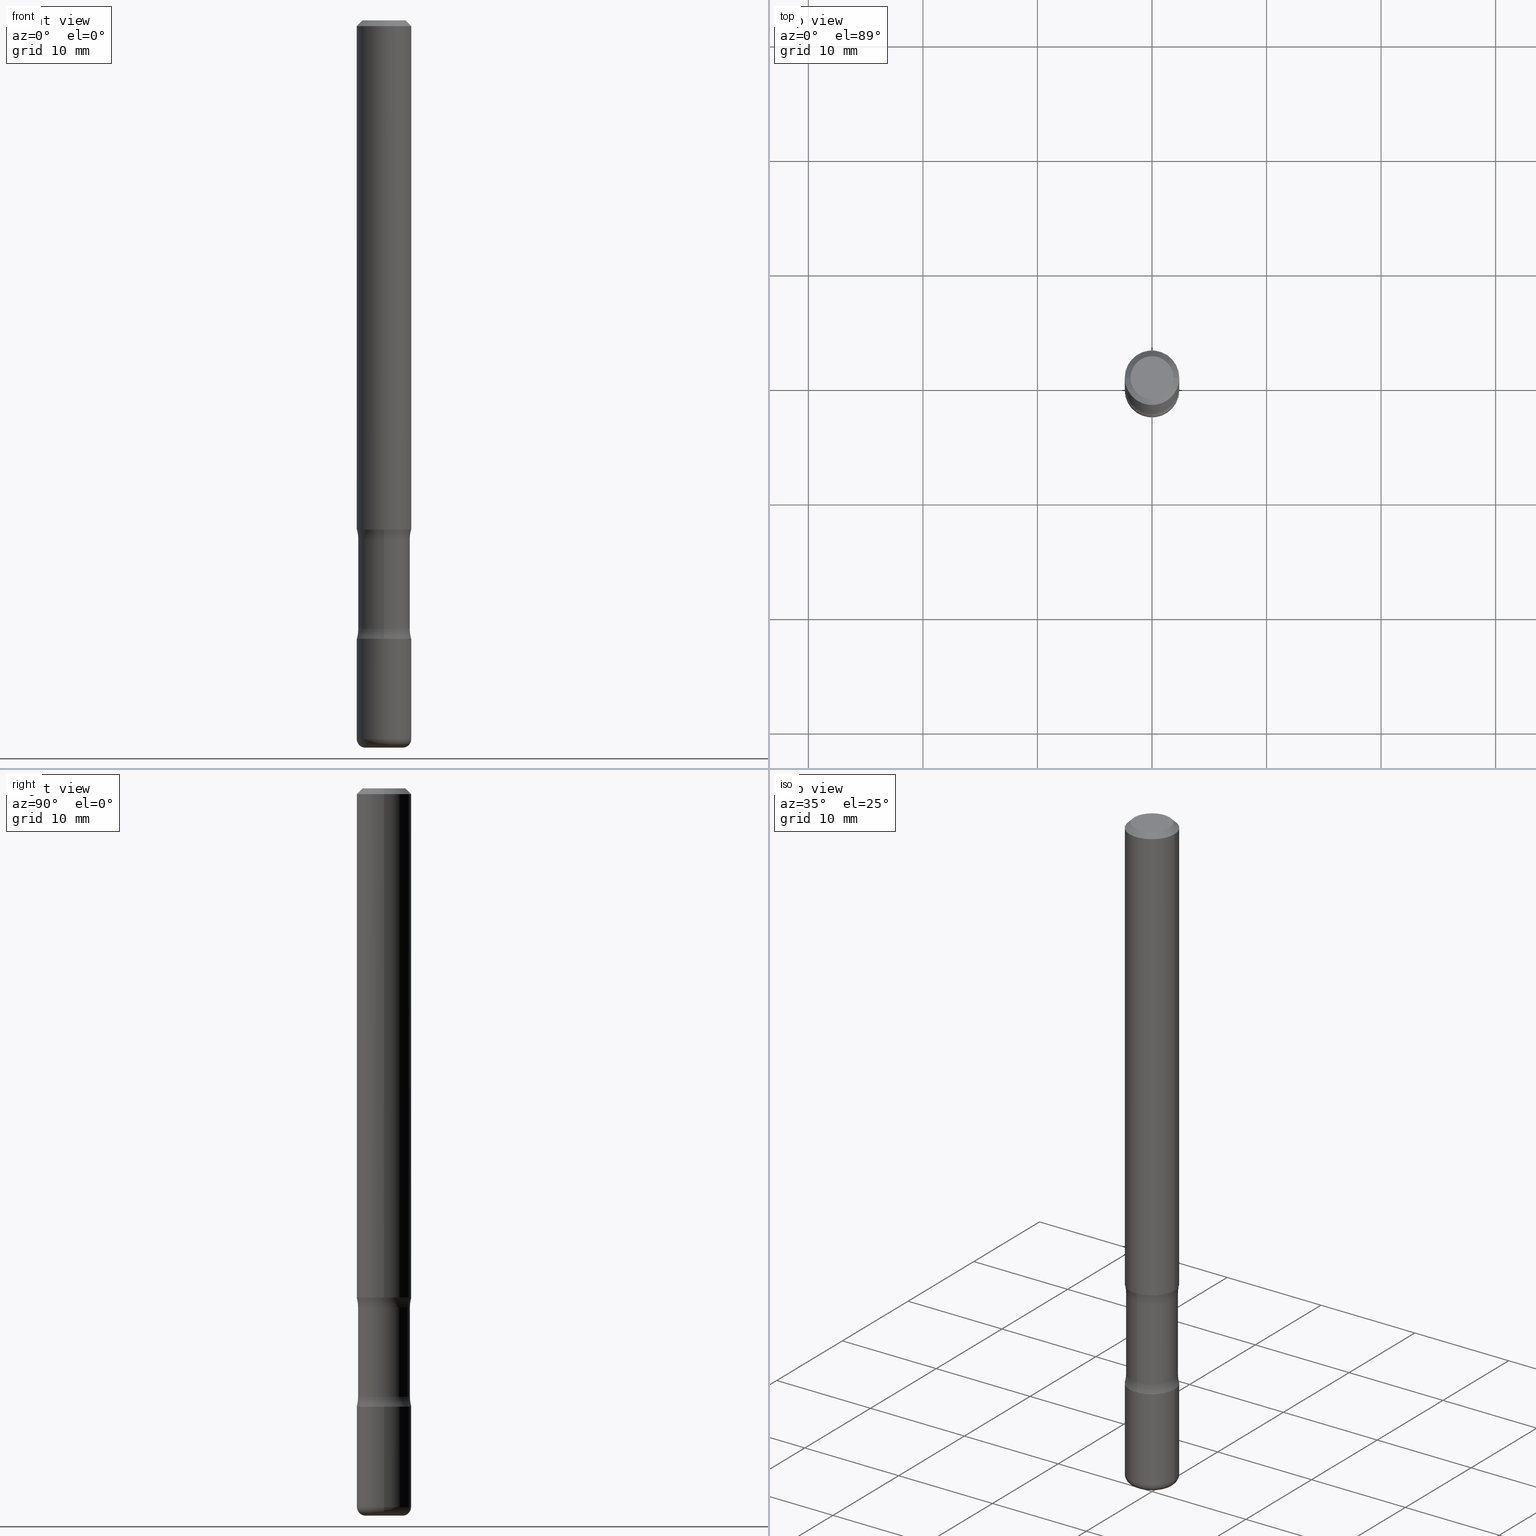
[diagram: canonical four-view strip — front | top / right | iso, engineering-drawing reading convention]
A machine part, canonical four-view strip (front | top / right | iso — engineering-drawing reading convention). The complete STEP part file that produces these views, byte-faithful:
ISO-10303-21;
HEADER;
FILE_DESCRIPTION (( 'STEP AP203' ),
    '1' );
FILE_NAME ('37779.STEP',
    '2024-03-02T00:15:08',
    ( '' ),
    ( '' ),
    'SwSTEP 2.0',
    'SolidWorks 2023',
    '' );
FILE_SCHEMA (( 'CONFIG_CONTROL_DESIGN' ));
ENDSEC;

DATA;
#1 = ORIENTED_EDGE ( 'NONE', *, *, #467, .F. ) ;
#2 = ORIENTED_EDGE ( 'NONE', *, *, #232, .F. ) ;
#3 = CIRCLE ( 'NONE', #419, 0.09375000000000009714 ) ;
#4 = AXIS2_PLACEMENT_3D ( 'NONE', #150, #148, #233 ) ;
#5 = ORIENTED_EDGE ( 'NONE', *, *, #477, .T. ) ;
#6 = ORIENTED_EDGE ( 'NONE', *, *, #92, .F. ) ;
#7 = LINE ( 'NONE', #183, #430 ) ;
#8 = EDGE_LOOP ( 'NONE', ( #1, #98 ) ) ;
#9 = ORIENTED_EDGE ( 'NONE', *, *, #557, .T. ) ;
#10 = DIRECTION ( 'NONE',  ( 2.438088387897960049E-29, -3.491481338843145188E-15, -1.000000000000000000 ) ) ;
#11 = PLANE ( 'NONE',  #129 ) ;
#12 = PERSON_AND_ORGANIZATION ( #230, #309 ) ;
#13 = PLANE ( 'NONE',  #462 ) ;
#14 = DIRECTION ( 'NONE',  ( 2.553476385947133355E-29, -3.336808337214295667E-15, -1.000000000000000000 ) ) ;
#15 = CIRCLE ( 'NONE', #86, 0.09374999999999981959 ) ;
#16 = CIRCLE ( 'NONE', #346, 0.1250000000000000278 ) ;
#17 = DIRECTION ( 'NONE',  ( 2.553476385947133355E-29, -3.336808337214295667E-15, -1.000000000000000000 ) ) ;
#18 = ORIENTED_EDGE ( 'NONE', *, *, #499, .T. ) ;
#19 = CALENDAR_DATE ( 2024, 1, 3 ) ;
#20 = DIRECTION ( 'NONE',  ( 1.000000000000000000, -6.982962677686266711E-15, 4.876176775795935793E-29 ) ) ;
#21 = DIRECTION ( 'NONE',  ( 6.982962677686265133E-15, 1.000000000000000000, -3.067338098149349877E-15 ) ) ;
#22 = ORIENTED_EDGE ( 'NONE', *, *, #269, .T. ) ;
#23 = ADVANCED_FACE ( 'NONE', ( #300 ), #13, .F. ) ;
#24 = APPROVAL_DATE_TIME ( #263, #276 ) ;
#25 = ADVANCED_FACE ( 'NONE', ( #347 ), #389, .T. ) ;
#26 = APPROVAL_STATUS ( 'not_yet_approved' ) ;
#27 = DIRECTION ( 'NONE',  ( 2.438088387897960049E-29, -3.491481338843145188E-15, -1.000000000000000000 ) ) ;
#28 = DIRECTION ( 'NONE',  ( -2.445468806185136877E-29, 3.491481338843145188E-15, 1.000000000000000000 ) ) ;
#29 = FACE_OUTER_BOUND ( 'NONE', #438, .T. ) ;
#30 = DIRECTION ( 'NONE',  ( 1.000000000000000000, -6.982962677686270655E-15, 0.000000000000000000 ) ) ;
#31 = FACE_OUTER_BOUND ( 'NONE', #101, .T. ) ;
#32 = DIRECTION ( 'NONE',  ( 6.982962677686265922E-15, 1.000000000000000000, -2.913971193241877611E-15 ) ) ;
#33 = DIRECTION ( 'NONE',  ( 2.553476385947133355E-29, -3.336808337214295667E-15, -1.000000000000000000 ) ) ;
#34 = CARTESIAN_POINT ( 'NONE',  ( 1.494790448192259658E-15, 0.2140624999999937161, -1.783910210022205289 ) ) ;
#35 = AXIS2_PLACEMENT_3D ( 'NONE', #134, #531, #336 ) ;
#36 = AXIS2_PLACEMENT_3D ( 'NONE', #315, #17, #125 ) ;
#37 = CC_DESIGN_APPROVAL ( #286, ( #62 ) ) ;
#38 = DIRECTION ( 'NONE',  ( 1.000000000000000000, -6.982962677686268288E-15, 0.000000000000000000 ) ) ;
#39 = CARTESIAN_POINT ( 'NONE',  ( 4.890937612370276662E-31, -6.982962677686296539E-17, -0.02000000000000001776 ) ) ;
#40 = DIRECTION ( 'NONE',  ( -2.445468806185136597E-29, 3.491481338843145583E-15, 1.000000000000000000 ) ) ;
#41 = DIRECTION ( 'NONE',  ( 1.000000000000000000, -6.982962677686268288E-15, 4.883557194083112901E-29 ) ) ;
#42 = CARTESIAN_POINT ( 'NONE',  ( -0.09374999999999981959, 5.848231242562233185E-16, -0.02000000000000001776 ) ) ;
#43 = APPROVAL_DATE_TIME ( #375, #286 ) ;
#44 = AXIS2_PLACEMENT_3D ( 'NONE', #393, #344, #498 ) ;
#45 = CIRCLE ( 'NONE', #109, 0.09375000000000002776 ) ;
#46 = EDGE_CURVE ( 'NONE', #259, #460, #159, .T. ) ;
#47 = DIRECTION ( 'NONE',  ( 6.982962677686265922E-15, 1.000000000000000000, -3.336808337214296061E-15 ) ) ;
#48 = FACE_OUTER_BOUND ( 'NONE', #8, .T. ) ;
#49 = DIRECTION ( 'NONE',  ( -2.445468806185136597E-29, 3.491481338843145583E-15, 1.000000000000000000 ) ) ;
#50 = AXIS2_PLACEMENT_3D ( 'NONE', #367, #554, #158 ) ;
#51 = EDGE_CURVE ( 'NONE', #481, #180, #235, .T. ) ;
#52 = APPROVAL_PERSON_ORGANIZATION ( #385, #286, #83 ) ;
#53 = DIRECTION ( 'NONE',  ( 1.000000000000000000, -6.982962677686268288E-15, 4.883557194083112901E-29 ) ) ;
#54 = ORIENTED_EDGE ( 'NONE', *, *, #222, .F. ) ;
#55 = EDGE_LOOP ( 'NONE', ( #485, #60, #9, #226 ) ) ;
#56 = ORIENTED_EDGE ( 'NONE', *, *, #405, .T. ) ;
#57 = DIRECTION ( 'NONE',  ( 6.982962677686265922E-15, 1.000000000000000000, -3.336808337214296061E-15 ) ) ;
#58 = VERTEX_POINT ( 'NONE', #341 ) ;
#59 = CALENDAR_DATE ( 2024, 1, 3 ) ;
#60 = ORIENTED_EDGE ( 'NONE', *, *, #119, .T. ) ;
#61 = CIRCLE ( 'NONE', #146, 0.07374999999999984346 ) ;
#62 = SECURITY_CLASSIFICATION ( '', '', #345 ) ;
#63 = ORIENTED_EDGE ( 'NONE', *, *, #248, .T. ) ;
#64 = CARTESIAN_POINT ( 'NONE',  ( 0.000000000000000000, 0.000000000000000000, 0.000000000000000000 ) ) ;
#65 = DIRECTION ( 'NONE',  ( 1.000000000000000000, -6.982962677686266711E-15, 4.876176775795935793E-29 ) ) ;
#66 = FACE_OUTER_BOUND ( 'NONE', #95, .T. ) ;
#67 = AXIS2_PLACEMENT_3D ( 'NONE', #373, #240, #198 ) ;
#68 = DIRECTION ( 'NONE',  ( -2.445468806185136597E-29, 3.491481338843145583E-15, 1.000000000000000000 ) ) ;
#69 = CARTESIAN_POINT ( 'NONE',  ( 0.06375000000000007050, -9.069122777645073127E-15, -2.470000000000000639 ) ) ;
#70 = CIRCLE ( 'NONE', #147, 0.08906249999999994726 ) ;
#71 = FACE_OUTER_BOUND ( 'NONE', #292, .T. ) ;
#72 = ORIENTED_EDGE ( 'NONE', *, *, #338, .F. ) ;
#73 = CARTESIAN_POINT ( 'NONE',  ( 4.338651280918389502E-29, -6.262637308385086581E-15, -1.783910210022204401 ) ) ;
#74 = CARTESIAN_POINT ( 'NONE',  ( 4.239067568413239630E-29, -6.168094718586322946E-15, -1.750000000000000000 ) ) ;
#75 = DIRECTION ( 'NONE',  ( -2.445468806185136597E-29, 3.491481338843145583E-15, 1.000000000000000000 ) ) ;
#76 = EDGE_CURVE ( 'NONE', #249, #58, #7, .T. ) ;
#77 = CLOSED_SHELL ( 'NONE', ( #368, #547, #190, #170, #267, #247 ) ) ;
#78 = VECTOR ( 'NONE', #501, 39.37007874015748143 ) ;
#79 = DIRECTION ( 'NONE',  ( -1.000000000000000000, 6.982962677686267499E-15, 0.000000000000000000 ) ) ;
#80 = DIRECTION ( 'NONE',  ( 0.000000000000000000, 0.000000000000000000, 1.000000000000000000 ) ) ;
#81 = DIRECTION ( 'NONE',  ( -1.000000000000000000, 6.982962677686265922E-15, -4.883557194083112901E-29 ) ) ;
#82 = DIRECTION ( 'NONE',  ( -2.445468806185136877E-29, 3.491481338843145188E-15, 1.000000000000000000 ) ) ;
#83 = APPROVAL_ROLE ( '' ) ;
#84 = CC_DESIGN_PERSON_AND_ORGANIZATION_ASSIGNMENT ( #539, #106, ( #192 ) ) ;
#85 = PERSON_AND_ORGANIZATION ( #230, #309 ) ;
#86 = AXIS2_PLACEMENT_3D ( 'NONE', #39, #324, #365 ) ;
#87 = VECTOR ( 'NONE', #316, 39.37007874015748143 ) ;
#88 = ORIENTED_EDGE ( 'NONE', *, *, #371, .F. ) ;
#89 = VERTEX_POINT ( 'NONE', #294 ) ;
#90 = ORIENTED_EDGE ( 'NONE', *, *, #451, .F. ) ;
#91 = DIRECTION ( 'NONE',  ( -2.445468806185136597E-29, 3.491481338843145583E-15, 1.000000000000000000 ) ) ;
#92 = EDGE_CURVE ( 'NONE', #58, #164, #177, .T. ) ;
#93 = DIRECTION ( 'NONE',  ( -2.445468806185136597E-29, 3.491481338843145583E-15, 1.000000000000000000 ) ) ;
#94 = ORIENTED_EDGE ( 'NONE', *, *, #499, .F. ) ;
#95 = EDGE_LOOP ( 'NONE', ( #258, #349, #210, #204 ) ) ;
#96 = AXIS2_PLACEMENT_3D ( 'NONE', #162, #320, #47 ) ;
#97 = LOCAL_TIME ( 19, 15, 8.000000000000000000, #535 ) ;
#98 = ORIENTED_EDGE ( 'NONE', *, *, #119, .F. ) ;
#99 = DIRECTION ( 'NONE',  ( 1.000000000000000000, -6.982962677686270655E-15, 0.000000000000000000 ) ) ;
#100 = CARTESIAN_POINT ( 'NONE',  ( 8.726388948129611336E-30, -1.361158663068067946E-14, -2.125000000000000000 ) ) ;
#101 = EDGE_LOOP ( 'NONE', ( #378, #383, #390, #206 ) ) ;
#102 = ADVANCED_FACE ( 'NONE', ( #471 ), #425, .T. ) ;
#103 = COORDINATED_UNIVERSAL_TIME_OFFSET ( 5, 0, .BEHIND. ) ;
#104 = VERTEX_POINT ( 'NONE', #250 ) ;
#105 = LINE ( 'NONE', #197, #87 ) ;
#106 = PERSON_AND_ORGANIZATION_ROLE ( 'design_supplier' ) ;
#107 = CARTESIAN_POINT ( 'NONE',  ( 4.279570410823988484E-29, -6.110092342975504671E-15, -1.750000000000000000 ) ) ;
#108 = CIRCLE ( 'NONE', #44, 0.08906249999999993339 ) ;
#109 = AXIS2_PLACEMENT_3D ( 'NONE', #157, #323, #99 ) ;
#110 = CYLINDRICAL_SURFACE ( 'NONE', #503, 0.09375000000000005551 ) ;
#111 = MANIFOLD_SOLID_BREP ( 'Body-Move/Copy2[2]', #77 ) ;
#112 = VECTOR ( 'NONE', #280, 39.37007874015748143 ) ;
#113 = DIRECTION ( 'NONE',  ( 6.982962677686265133E-15, 1.000000000000000000, -3.067338098149349877E-15 ) ) ;
#114 = CONICAL_SURFACE ( 'NONE', #50, 0.09374999999999981959, 0.7853981633974472798 ) ;
#115 = CARTESIAN_POINT ( 'NONE',  ( -0.09374999999999994449, -7.957825092167479227E-15, -2.470000000000000639 ) ) ;
#116 = FACE_OUTER_BOUND ( 'NONE', #470, .T. ) ;
#117 = PRODUCT_DEFINITION ( 'UNKNOWN', '', #192, #483 ) ;
#118 = DIRECTION ( 'NONE',  ( 6.982962677686265922E-15, 1.000000000000000000, -3.336808337214296061E-15 ) ) ;
#119 = EDGE_CURVE ( 'NONE', #259, #253, #187, .T. ) ;
#120 = ADVANCED_FACE ( 'NONE', ( #48 ), #339, .T. ) ;
#121 = APPLICATION_CONTEXT ( 'configuration controlled 3d designs of mechanical parts and assemblies' ) ;
#122 = PERSON_AND_ORGANIZATION_ROLE ( 'design_owner' ) ;
#123 = FACE_OUTER_BOUND ( 'NONE', #55, .T. ) ;
#124 = CIRCLE ( 'NONE', #343, 0.09375000000000002776 ) ;
#125 = DIRECTION ( 'NONE',  ( 6.982962677686265133E-15, 1.000000000000000000, -3.067338098149350666E-15 ) ) ;
#126 = LINE ( 'NONE', #330, #266 ) ;
#127 = EDGE_CURVE ( 'NONE', #342, #475, #124, .T. ) ;
#128 = DIRECTION ( 'NONE',  ( -6.982962677686265922E-15, -1.000000000000000000, 0.000000000000000000 ) ) ;
#129 = AXIS2_PLACEMENT_3D ( 'NONE', #297, #435, #175 ) ;
#130 = CIRCLE ( 'NONE', #257, 0.1250000000000000278 ) ;
#131 = CC_DESIGN_PERSON_AND_ORGANIZATION_ASSIGNMENT ( #85, #422, ( #117 ) ) ;
#132 = APPLICATION_PROTOCOL_DEFINITION ( 'international standard', 'config_control_design', 1994, #121 ) ;
#133 = CARTESIAN_POINT ( 'NONE',  ( 6.113672015462842613E-29, -8.728703347107864943E-15, -2.500000000000000000 ) ) ;
#134 = CARTESIAN_POINT ( 'NONE',  ( 6.154174857873591467E-29, -8.670700971497045879E-15, -2.500000000000000000 ) ) ;
#135 = CARTESIAN_POINT ( 'NONE',  ( 6.040307951277289098E-29, -8.623958906942573151E-15, -2.470000000000000639 ) ) ;
#136 = FACE_OUTER_BOUND ( 'NONE', #144, .T. ) ;
#137 = TOROIDAL_SURFACE ( 'NONE', #274, 0.06375000000000007050, 0.02999999999999971440 ) ;
#138 = EDGE_LOOP ( 'NONE', ( #301, #216, #382, #273 ) ) ;
#139 = CARTESIAN_POINT ( 'NONE',  ( 6.113672015462842613E-29, -8.728703347107864943E-15, -2.500000000000000000 ) ) ;
#140 = VERTEX_POINT ( 'NONE', #465 ) ;
#141 = ORIENTED_EDGE ( 'NONE', *, *, #248, .F. ) ;
#142 = DATE_TIME_ROLE ( 'classification_date' ) ;
#143 = CARTESIAN_POINT ( 'NONE',  ( 0.09375000000000005551, -6.546527510330878985E-16, 4.571415727308692608E-30 ) ) ;
#144 = EDGE_LOOP ( 'NONE', ( #384, #141 ) ) ;
#145 = APPROVAL_ROLE ( '' ) ;
#146 = AXIS2_PLACEMENT_3D ( 'NONE', #412, #40, #327 ) ;
#147 = AXIS2_PLACEMENT_3D ( 'NONE', #548, #33, #113 ) ;
#148 = DIRECTION ( 'NONE',  ( -2.445468806185136597E-29, 3.491481338843145583E-15, 1.000000000000000000 ) ) ;
#149 = UNCERTAINTY_MEASURE_WITH_UNIT (LENGTH_MEASURE( 1.000000000000000082E-05 ), #284, 'distance_accuracy_value', 'NONE');
#150 = CARTESIAN_POINT ( 'NONE',  ( 4.279570410823988484E-29, -6.110092342975504671E-15, -1.750000000000000000 ) ) ;
#151 = FACE_OUTER_BOUND ( 'NONE', #138, .T. ) ;
#152 = PRODUCT_RELATED_PRODUCT_CATEGORY ( 'detail', '', ( #414 ) ) ;
#153 = EDGE_CURVE ( 'NONE', #460, #432, #3, .T. ) ;
#154 = AXIS2_PLACEMENT_3D ( 'NONE', #69, #191, #504 ) ;
#155 = CARTESIAN_POINT ( 'NONE',  ( 1.494790448192267349E-15, 0.2140624999999926614, -2.091089789977796265 ) ) ;
#156 = CARTESIAN_POINT ( 'NONE',  ( 5.113694852322927974E-29, -7.301000979552905916E-15, -2.091089789977795821 ) ) ;
#157 = CARTESIAN_POINT ( 'NONE',  ( 5.196621213143415268E-29, -7.419397845041685201E-15, -2.125000000000000000 ) ) ;
#158 = DIRECTION ( 'NONE',  ( -1.000000000000000000, 6.982962677686267499E-15, 0.000000000000000000 ) ) ;
#159 = CIRCLE ( 'NONE', #489, 0.02999999999999971440 ) ;
#160 = APPLICATION_PROTOCOL_DEFINITION ( 'international standard', 'config_control_design', 1994, #196 ) ;
#161 = AXIS2_PLACEMENT_3D ( 'NONE', #514, #285, #30 ) ;
#162 = CARTESIAN_POINT ( 'NONE',  ( 4.338651280918389502E-29, -6.262637308385086581E-15, -1.783910210022204401 ) ) ;
#163 = PRODUCT_DEFINITION_SHAPE ( 'NONE', 'NONE',  #117 ) ;
#164 = VERTEX_POINT ( 'NONE', #42 ) ;
#165 = COORDINATED_UNIVERSAL_TIME_OFFSET ( 5, 0, .BEHIND. ) ;
#166 = ORIENTED_EDGE ( 'NONE', *, *, #304, .T. ) ;
#167 = EDGE_CURVE ( 'NONE', #460, #104, #199, .T. ) ;
#168 = LOCAL_TIME ( 19, 15, 8.000000000000000000, #271 ) ;
#169 = ORIENTED_EDGE ( 'NONE', *, *, #127, .T. ) ;
#170 = ADVANCED_FACE ( 'NONE', ( #359 ), #399, .F. ) ;
#171 = DIRECTION ( 'NONE',  ( 1.000000000000000000, -6.982962677686267499E-15, 0.000000000000000000 ) ) ;
#172 = EDGE_LOOP ( 'NONE', ( #436, #337, #6, #434 ) ) ;
#173 = CARTESIAN_POINT ( 'NONE',  ( 0.000000000000000000, 0.000000000000000000, 0.000000000000000000 ) ) ;
#174 = ORIENTED_EDGE ( 'NONE', *, *, #269, .F. ) ;
#175 = DIRECTION ( 'NONE',  ( 1.000000000000000000, -6.982962677686265922E-15, 4.876176775795935793E-29 ) ) ;
#176 = PERSON_AND_ORGANIZATION_ROLE ( 'creator' ) ;
#177 = CIRCLE ( 'NONE', #200, 0.09374999999999981959 ) ;
#178 = CC_DESIGN_PERSON_AND_ORGANIZATION_ASSIGNMENT ( #513, #122, ( #414 ) ) ;
#179 = AXIS2_PLACEMENT_3D ( 'NONE', #495, #272, #357 ) ;
#180 = VERTEX_POINT ( 'NONE', #354 ) ;
#181 = LOCAL_TIME ( 19, 15, 8.000000000000000000, #103 ) ;
#182 = DATE_AND_TIME ( #19, #181 ) ;
#183 = CARTESIAN_POINT ( 'NONE',  ( 0.09374999999999991673, -6.546527510330869125E-16, 4.571415727308685602E-30 ) ) ;
#184 = PLANE ( 'NONE',  #533 ) ;
#185 = ORIENTED_EDGE ( 'NONE', *, *, #321, .T. ) ;
#186 = DIRECTION ( 'NONE',  ( -2.553476385947132794E-29, 3.336808337214295667E-15, 1.000000000000000000 ) ) ;
#187 = CIRCLE ( 'NONE', #376, 0.06375000000000007050 ) ;
#188 = AXIS2_PLACEMENT_3D ( 'NONE', #173, #93, #20 ) ;
#189 = ORIENTED_EDGE ( 'NONE', *, *, #557, .F. ) ;
#190 = ADVANCED_FACE ( 'NONE', ( #310 ), #508, .T. ) ;
#191 = DIRECTION ( 'NONE',  ( -6.982962677686266711E-15, -1.000000000000000000, 3.491481338843145583E-15 ) ) ;
#192 = PRODUCT_DEFINITION_FORMATION_WITH_SPECIFIED_SOURCE ( 'ANY', '', #414, .NOT_KNOWN. ) ;
#193 = DIRECTION ( 'NONE',  ( -2.445468806185136597E-29, 3.491481338843145583E-15, 1.000000000000000000 ) ) ;
#194 = DIRECTION ( 'NONE',  ( -2.445468806185136597E-29, 3.491481338843145583E-15, 1.000000000000000000 ) ) ;
#195 = CARTESIAN_POINT ( 'NONE',  ( 0.000000000000000000, 0.000000000000000000, 0.000000000000000000 ) ) ;
#196 = APPLICATION_CONTEXT ( 'configuration controlled 3d designs of mechanical parts and assemblies' ) ;
#197 = CARTESIAN_POINT ( 'NONE',  ( 0.09374999999999981959, -7.130013140679428044E-16, -0.02000000000000001776 ) ) ;
#198 = DIRECTION ( 'NONE',  ( 6.982962677686265922E-15, 1.000000000000000000, -2.913971193241879977E-15 ) ) ;
#199 = LINE ( 'NONE', #545, #318 ) ;
#200 = AXIS2_PLACEMENT_3D ( 'NONE', #428, #540, #171 ) ;
#201 = AXIS2_PLACEMENT_3D ( 'NONE', #500, #68, #229 ) ;
#202 = CARTESIAN_POINT ( 'NONE',  ( 4.279570410823988484E-29, -6.110092342975504671E-15, -1.750000000000000000 ) ) ;
#203 = DIRECTION ( 'NONE',  ( 1.000000000000000000, -6.860497997771530774E-15, 4.842693077587735886E-29 ) ) ;
#204 = ORIENTED_EDGE ( 'NONE', *, *, #492, .F. ) ;
#205 = ORIENTED_EDGE ( 'NONE', *, *, #530, .T. ) ;
#206 = ORIENTED_EDGE ( 'NONE', *, *, #288, .F. ) ;
#207 = AXIS2_PLACEMENT_3D ( 'NONE', #139, #496, #544 ) ;
#208 = VERTEX_POINT ( 'NONE', #372 ) ;
#209 = ORIENTED_EDGE ( 'NONE', *, *, #409, .T. ) ;
#210 = ORIENTED_EDGE ( 'NONE', *, *, #401, .T. ) ;
#211 = EDGE_LOOP ( 'NONE', ( #231, #538 ) ) ;
#212 = ORIENTED_EDGE ( 'NONE', *, *, #371, .T. ) ;
#213 = CC_DESIGN_DATE_AND_TIME_ASSIGNMENT ( #182, #142, ( #62 ) ) ;
#214 = ORIENTED_EDGE ( 'NONE', *, *, #427, .F. ) ;
#215 = DIRECTION ( 'NONE',  ( -1.000000000000000000, 6.982962677686265922E-15, -4.876176775795935793E-29 ) ) ;
#216 = ORIENTED_EDGE ( 'NONE', *, *, #167, .T. ) ;
#217 = VECTOR ( 'NONE', #277, 39.37007874015748143 ) ;
#218 = AXIS2_PLACEMENT_3D ( 'NONE', #64, #80, #352 ) ;
#219 = DIRECTION ( 'NONE',  ( -1.000000000000000000, 7.105427357600993970E-15, 0.000000000000000000 ) ) ;
#220 = CARTESIAN_POINT ( 'NONE',  ( 0.06375000000000007050, -9.173867217810364919E-15, -2.500000000000000000 ) ) ;
#221 = PERSON_AND_ORGANIZATION ( #230, #309 ) ;
#222 = EDGE_CURVE ( 'NONE', #180, #481, #61, .T. ) ;
#223 = ADVANCED_FACE ( 'NONE', ( #515 ), #476, .F. ) ;
#224 = CALENDAR_DATE ( 2024, 1, 3 ) ;
#225 = CYLINDRICAL_SURFACE ( 'NONE', #478, 0.09375000000000005551 ) ;
#226 = ORIENTED_EDGE ( 'NONE', *, *, #153, .F. ) ;
#227 = CIRCLE ( 'NONE', #4, 0.09375000000000004163 ) ;
#228 = CARTESIAN_POINT ( 'NONE',  ( 4.239067568413239630E-29, -6.168094718586322946E-15, -1.750000000000000000 ) ) ;
#229 = DIRECTION ( 'NONE',  ( 1.000000000000000000, -6.982962677686266711E-15, 4.876176775795935793E-29 ) ) ;
#230 = PERSON ( 'UNSPECIFIED', 'UNSPECIFIED', 'UNSPECIFIED', ('UNSPECIFIED'), ('UNSPECIFIED'), ('UNSPECIFIED') ) ;
#231 = ORIENTED_EDGE ( 'NONE', *, *, #222, .T. ) ;
#232 = EDGE_CURVE ( 'NONE', #475, #342, #455, .T. ) ;
#233 = DIRECTION ( 'NONE',  ( 1.000000000000000000, -6.982962677686269866E-15, 0.000000000000000000 ) ) ;
#234 = DIRECTION ( 'NONE',  ( 1.000000000000000000, -6.982962677686266711E-15, 4.876176775795935793E-29 ) ) ;
#235 = CIRCLE ( 'NONE', #188, 0.07374999999999984346 ) ;
#236 = CARTESIAN_POINT ( 'NONE',  ( 4.325656488947447574E-29, -6.281246590105103764E-15, -1.783910210022204623 ) ) ;
#237 = AXIS2_PLACEMENT_3D ( 'NONE', #228, #355, #404 ) ;
#238 = DIRECTION ( 'NONE',  ( -6.982962677686265922E-15, -1.000000000000000000, 0.000000000000000000 ) ) ;
#239 = CARTESIAN_POINT ( 'NONE',  ( -6.270923951087521301E-16, -0.08906250000000723310, -2.091089789977795377 ) ) ;
#240 = DIRECTION ( 'NONE',  ( 2.553476385947133355E-29, -3.336808337214295667E-15, -1.000000000000000000 ) ) ;
#241 = SHAPE_DEFINITION_REPRESENTATION ( #163, #398 ) ;
#242 = DIRECTION ( 'NONE',  ( -1.000000000000000000, 6.982962677686265922E-15, -4.883557194083112901E-29 ) ) ;
#243 = CARTESIAN_POINT ( 'NONE',  ( 6.040307951277289098E-29, -8.623958906942573151E-15, -2.470000000000000639 ) ) ;
#244 = CARTESIAN_POINT ( 'NONE',  ( -6.431716872910290192E-16, -0.09375000000000745237, -2.125000000000000000 ) ) ;
#245 = AXIS2_PLACEMENT_3D ( 'NONE', #195, #366, #553 ) ;
#246 = CIRCLE ( 'NONE', #161, 0.09375000000000002776 ) ;
#247 = ADVANCED_FACE ( 'NONE', ( #468 ), #291, .T. ) ;
#248 = EDGE_CURVE ( 'NONE', #391, #249, #333, .T. ) ;
#249 = VERTEX_POINT ( 'NONE', #556 ) ;
#250 = CARTESIAN_POINT ( 'NONE',  ( -0.09375000000000002776, -7.355544561217034463E-15, -2.125000000000000000 ) ) ;
#251 = ORIENTED_EDGE ( 'NONE', *, *, #492, .T. ) ;
#252 = DIRECTION ( 'NONE',  ( 7.105427357601001859E-15, 1.000000000000000000, -3.491481338843145583E-15 ) ) ;
#253 = VERTEX_POINT ( 'NONE', #220 ) ;
#254 = EDGE_LOOP ( 'NONE', ( #452, #205, #174, #520 ) ) ;
#255 = AXIS2_PLACEMENT_3D ( 'NONE', #311, #550, #79 ) ;
#256 = APPROVAL_PERSON_ORGANIZATION ( #282, #517, #145 ) ;
#257 = AXIS2_PLACEMENT_3D ( 'NONE', #155, #242, #128 ) ;
#258 = ORIENTED_EDGE ( 'NONE', *, *, #167, .F. ) ;
#259 = VERTEX_POINT ( 'NONE', #335 ) ;
#260 = ADVANCED_FACE ( 'NONE', ( #265 ), #137, .T. ) ;
#261 = EDGE_LOOP ( 'NONE', ( #525, #527, #473, #189 ) ) ;
#262 = CARTESIAN_POINT ( 'NONE',  ( 5.113694852322927974E-29, -7.301000979552905916E-15, -2.091089789977795821 ) ) ;
#263 = DATE_AND_TIME ( #59, #97 ) ;
#264 = ORIENTED_EDGE ( 'NONE', *, *, #348, .F. ) ;
#265 = FACE_OUTER_BOUND ( 'NONE', #261, .T. ) ;
#266 = VECTOR ( 'NONE', #82, 39.37007874015748143 ) ;
#267 = ADVANCED_FACE ( 'NONE', ( #136 ), #11, .F. ) ;
#268 = CIRCLE ( 'NONE', #237, 0.09375000000000009714 ) ;
#269 = EDGE_CURVE ( 'NONE', #208, #293, #108, .T. ) ;
#270 = CARTESIAN_POINT ( 'NONE',  ( 0.000000000000000000, 0.000000000000000000, 0.000000000000000000 ) ) ;
#271 = COORDINATED_UNIVERSAL_TIME_OFFSET ( 5, 0, .BEHIND. ) ;
#272 = DIRECTION ( 'NONE',  ( 1.000000000000000000, -6.860497997771530774E-15, 4.842693077587735886E-29 ) ) ;
#273 = ORIENTED_EDGE ( 'NONE', *, *, #401, .F. ) ;
#274 = AXIS2_PLACEMENT_3D ( 'NONE', #523, #91, #53 ) ;
#275 = VECTOR ( 'NONE', #308, 39.37007874015748143 ) ;
#276 = APPROVAL ( #487, 'UNSPECIFIED' ) ;
#277 = DIRECTION ( 'NONE',  ( 2.553476385947133355E-29, -3.336808337214295667E-15, -1.000000000000000000 ) ) ;
#278 = CARTESIAN_POINT ( 'NONE',  ( 6.546527510331397661E-16, 0.09374999999999261702, -2.125000000000000444 ) ) ;
#279 = MECHANICAL_CONTEXT ( 'NONE', #121, 'mechanical' ) ;
#280 = DIRECTION ( 'NONE',  ( -0.7071067811865467956, 2.468850131082249172E-15, -0.7071067811865482389 ) ) ;
#281 = CIRCLE ( 'NONE', #179, 0.1250000000000000278 ) ;
#282 = PERSON_AND_ORGANIZATION ( #230, #309 ) ;
#283 = DIRECTION ( 'NONE',  ( 1.000000000000000000, -6.982962677686269866E-15, 0.000000000000000000 ) ) ;
#284 =( CONVERSION_BASED_UNIT ( 'INCH', #329 ) LENGTH_UNIT ( ) NAMED_UNIT ( #326 ) );
#285 = DIRECTION ( 'NONE',  ( -2.445468806185136597E-29, 3.491481338843145583E-15, 1.000000000000000000 ) ) ;
#286 = APPROVAL ( #518, 'UNSPECIFIED' ) ;
#287 = CARTESIAN_POINT ( 'NONE',  ( 0.07374999999999984346, -6.094815207017961198E-16, 3.931526600461598749E-30 ) ) ;
#288 = EDGE_CURVE ( 'NONE', #180, #164, #507, .T. ) ;
#289 = CLOSED_SHELL ( 'NONE', ( #519, #260, #120, #313, #472, #23 ) ) ;
#290 = CIRCLE ( 'NONE', #543, 0.09375000000000009714 ) ;
#291 = CYLINDRICAL_SURFACE ( 'NONE', #245, 0.09374999999999991673 ) ;
#292 = EDGE_LOOP ( 'NONE', ( #295, #72 ) ) ;
#293 = VERTEX_POINT ( 'NONE', #239 ) ;
#294 = CARTESIAN_POINT ( 'NONE',  ( 6.546527510331302998E-16, 0.09374999999999390765, -1.750000000000000222 ) ) ;
#295 = ORIENTED_EDGE ( 'NONE', *, *, #405, .F. ) ;
#296 = AXIS2_PLACEMENT_3D ( 'NONE', #303, #524, #443 ) ;
#297 = CARTESIAN_POINT ( 'NONE',  ( 4.279570410823988484E-29, -6.110092342975504671E-15, -1.750000000000000000 ) ) ;
#298 = AXIS2_PLACEMENT_3D ( 'NONE', #34, #81, #238 ) ;
#299 = VERTEX_POINT ( 'NONE', #502 ) ;
#300 = FACE_OUTER_BOUND ( 'NONE', #437, .T. ) ;
#301 = ORIENTED_EDGE ( 'NONE', *, *, #509, .T. ) ;
#302 = CALENDAR_DATE ( 2024, 1, 3 ) ;
#303 = CARTESIAN_POINT ( 'NONE',  ( 6.154174857873591467E-29, -8.670700971497045879E-15, -2.500000000000000000 ) ) ;
#304 = EDGE_CURVE ( 'NONE', #164, #58, #15, .T. ) ;
#305 = DATE_TIME_ROLE ( 'creation_date' ) ;
#306 = CARTESIAN_POINT ( 'NONE',  ( 5.196621213143415268E-29, -7.419397845041685201E-15, -2.125000000000000000 ) ) ;
#307 = FACE_OUTER_BOUND ( 'NONE', #529, .T. ) ;
#308 = DIRECTION ( 'NONE',  ( -2.445468806185136877E-29, 3.491481338843145188E-15, 1.000000000000000000 ) ) ;
#309 = ORGANIZATION ( 'UNSPECIFIED', 'UNSPECIFIED', '' ) ;
#310 = FACE_OUTER_BOUND ( 'NONE', #442, .T. ) ;
#311 = CARTESIAN_POINT ( 'NONE',  ( 4.890937612370276662E-31, -6.982962677686296539E-17, -0.02000000000000001776 ) ) ;
#312 = FACE_OUTER_BOUND ( 'NONE', #172, .T. ) ;
#313 = ADVANCED_FACE ( 'NONE', ( #123 ), #392, .T. ) ;
#314 = DIRECTION ( 'NONE',  ( 2.553476385947133355E-29, -3.336808337214295667E-15, -1.000000000000000000 ) ) ;
#315 = CARTESIAN_POINT ( 'NONE',  ( 5.110032292609207884E-29, -7.306245973522905960E-15, -2.091089789977795821 ) ) ;
#316 = DIRECTION ( 'NONE',  ( 0.7071067811865467956, -7.319954787623254468E-15, -0.7071067811865482389 ) ) ;
#317 = CARTESIAN_POINT ( 'NONE',  ( -0.09374999999999981959, 5.848231242562233185E-16, -0.02000000000000001776 ) ) ;
#318 = VECTOR ( 'NONE', #28, 39.37007874015748143 ) ;
#319 = CIRCLE ( 'NONE', #298, 0.1250000000000000278 ) ;
#320 = DIRECTION ( 'NONE',  ( 2.553476385947133355E-29, -3.336808337214295667E-15, -1.000000000000000000 ) ) ;
#321 = EDGE_CURVE ( 'NONE', #380, #208, #555, .T. ) ;
#322 = DIRECTION ( 'NONE',  ( 2.553476385947133355E-29, -3.336808337214295667E-15, -1.000000000000000000 ) ) ;
#323 = DIRECTION ( 'NONE',  ( -2.445468806185136597E-29, 3.491481338843145583E-15, 1.000000000000000000 ) ) ;
#324 = DIRECTION ( 'NONE',  ( -2.445468806185136597E-29, 3.491481338843145583E-15, 1.000000000000000000 ) ) ;
#325 = DIRECTION ( 'NONE',  ( -2.445468806185136597E-29, 3.491481338843145583E-15, 1.000000000000000000 ) ) ;
#326 = DIMENSIONAL_EXPONENTS ( 1.000000000000000000, 0.000000000000000000, 0.000000000000000000, 0.000000000000000000, 0.000000000000000000, 0.000000000000000000, 0.000000000000000000 ) ;
#327 = DIRECTION ( 'NONE',  ( 1.000000000000000000, -6.982962677686266711E-15, 4.876176775795935793E-29 ) ) ;
#328 = APPROVAL_PERSON_ORGANIZATION ( #221, #276, #441 ) ;
#329 = LENGTH_MEASURE_WITH_UNIT ( LENGTH_MEASURE( 0.02539999999999999897 ), #370 );
#330 = CARTESIAN_POINT ( 'NONE',  ( -0.09374999999999991673, 6.661338147750933326E-16, -4.611501647113969791E-30 ) ) ;
#331 =( NAMED_UNIT ( * ) SI_UNIT ( $, .STERADIAN. ) SOLID_ANGLE_UNIT ( ) );
#332 = CALENDAR_DATE ( 2024, 1, 3 ) ;
#333 = CIRCLE ( 'NONE', #521, 0.09375000000000004163 ) ;
#334 = CIRCLE ( 'NONE', #154, 0.02999999999999971440 ) ;
#335 = CARTESIAN_POINT ( 'NONE',  ( -0.06375000000000007050, -8.116778722614140245E-15, -2.500000000000000000 ) ) ;
#336 = DIRECTION ( 'NONE',  ( 6.982962677686265133E-15, 1.000000000000000000, -6.134676196298701332E-15 ) ) ;
#337 = ORIENTED_EDGE ( 'NONE', *, *, #348, .T. ) ;
#338 = EDGE_CURVE ( 'NONE', #299, #89, #362, .T. ) ;
#339 = PLANE ( 'NONE',  #207 ) ;
#340 = ORIENTED_EDGE ( 'NONE', *, *, #542, .F. ) ;
#341 = CARTESIAN_POINT ( 'NONE',  ( 0.09374999999999981959, -7.130013140679428044E-16, -0.02000000000000001776 ) ) ;
#342 = VERTEX_POINT ( 'NONE', #278 ) ;
#343 = AXIS2_PLACEMENT_3D ( 'NONE', #306, #314, #512 ) ;
#344 = DIRECTION ( 'NONE',  ( 2.553476385947133355E-29, -3.336808337214295667E-15, -1.000000000000000000 ) ) ;
#345 = SECURITY_CLASSIFICATION_LEVEL ( 'unclassified' ) ;
#346 = AXIS2_PLACEMENT_3D ( 'NONE', #381, #203, #466 ) ;
#347 = FACE_OUTER_BOUND ( 'NONE', #474, .T. ) ;
#348 = EDGE_CURVE ( 'NONE', #391, #164, #126, .T. ) ;
#349 = ORIENTED_EDGE ( 'NONE', *, *, #153, .T. ) ;
#350 = DIRECTION ( 'NONE',  ( -2.445468806185136877E-29, 3.491481338843145188E-15, 1.000000000000000000 ) ) ;
#351 = CARTESIAN_POINT ( 'NONE',  ( -0.09375000000000004163, -2.423827170101085722E-15, -1.750000000000000000 ) ) ;
#352 = DIRECTION ( 'NONE',  ( 1.000000000000000000, 0.000000000000000000, 0.000000000000000000 ) ) ;
#353 = CARTESIAN_POINT ( 'NONE',  ( 8.726388948129611336E-30, -1.361158663068067946E-14, -2.125000000000000000 ) ) ;
#354 = CARTESIAN_POINT ( 'NONE',  ( -0.07374999999999984346, 5.499083108677921624E-16, -3.723527850031186263E-30 ) ) ;
#355 = DIRECTION ( 'NONE',  ( 2.553476385947133355E-29, -3.336808337214295667E-15, -1.000000000000000000 ) ) ;
#356 = AXIS2_PLACEMENT_3D ( 'NONE', #262, #439, #57 ) ;
#357 = DIRECTION ( 'NONE',  ( 6.860497997771531562E-15, 1.000000000000000000, 0.000000000000000000 ) ) ;
#358 = EDGE_CURVE ( 'NONE', #140, #104, #246, .T. ) ;
#359 = FACE_OUTER_BOUND ( 'NONE', #211, .T. ) ;
#360 = PLANE ( 'NONE',  #420 ) ;
#361 = ORIENTED_EDGE ( 'NONE', *, *, #530, .F. ) ;
#362 = CIRCLE ( 'NONE', #446, 0.09375000000000009714 ) ;
#363 =( GEOMETRIC_REPRESENTATION_CONTEXT ( 3 ) GLOBAL_UNCERTAINTY_ASSIGNED_CONTEXT ( ( #149 ) ) GLOBAL_UNIT_ASSIGNED_CONTEXT ( ( #284, #418, #331 ) ) REPRESENTATION_CONTEXT ( 'NONE', 'WORKASPACE' ) );
#364 = EDGE_CURVE ( 'NONE', #249, #391, #227, .T. ) ;
#365 = DIRECTION ( 'NONE',  ( 1.000000000000000000, -6.982962677686267499E-15, 0.000000000000000000 ) ) ;
#366 = DIRECTION ( 'NONE',  ( -2.445468806185136597E-29, 3.491481338843145583E-15, 1.000000000000000000 ) ) ;
#367 = CARTESIAN_POINT ( 'NONE',  ( 4.890937612370276662E-31, -6.982962677686296539E-17, -0.02000000000000001776 ) ) ;
#368 = ADVANCED_FACE ( 'NONE', ( #312 ), #407, .T. ) ;
#369 = CLOSED_SHELL ( 'NONE', ( #102, #559, #223, #482, #387, #458, #415, #25 ) ) ;
#370 =( LENGTH_UNIT ( ) NAMED_UNIT ( * ) SI_UNIT ( $, .METRE. ) );
#371 = EDGE_CURVE ( 'NONE', #429, #380, #70, .T. ) ;
#372 = CARTESIAN_POINT ( 'NONE',  ( 6.219201134814836160E-16, 0.08906249999999261979, -2.091089789977795821 ) ) ;
#373 = CARTESIAN_POINT ( 'NONE',  ( 5.196621213143415268E-29, -7.419397845041685201E-15, -2.125000000000000000 ) ) ;
#374 = CC_DESIGN_PERSON_AND_ORGANIZATION_ASSIGNMENT ( #12, #176, ( #192 ) ) ;
#375 = DATE_AND_TIME ( #332, #534 ) ;
#376 = AXIS2_PLACEMENT_3D ( 'NONE', #133, #49, #528 ) ;
#377 = CIRCLE ( 'NONE', #36, 0.08906249999999993339 ) ;
#378 = ORIENTED_EDGE ( 'NONE', *, *, #51, .F. ) ;
#379 = EDGE_LOOP ( 'NONE', ( #88, #18, #388, #440 ) ) ;
#380 = VERTEX_POINT ( 'NONE', #457 ) ;
#381 = CARTESIAN_POINT ( 'NONE',  ( -1.468575352647924772E-15, -0.2140625000000062339, -1.783910210022203513 ) ) ;
#382 = ORIENTED_EDGE ( 'NONE', *, *, #358, .F. ) ;
#383 = ORIENTED_EDGE ( 'NONE', *, *, #542, .T. ) ;
#384 = ORIENTED_EDGE ( 'NONE', *, *, #364, .F. ) ;
#385 = PERSON_AND_ORGANIZATION ( #230, #309 ) ;
#386 = CC_DESIGN_PERSON_AND_ORGANIZATION_ASSIGNMENT ( #484, #394, ( #62 ) ) ;
#387 = ADVANCED_FACE ( 'NONE', ( #71 ), #360, .F. ) ;
#388 = ORIENTED_EDGE ( 'NONE', *, *, #338, .T. ) ;
#389 = CYLINDRICAL_SURFACE ( 'NONE', #296, 0.08906249999999993339 ) ;
#390 = ORIENTED_EDGE ( 'NONE', *, *, #92, .T. ) ;
#391 = VERTEX_POINT ( 'NONE', #351 ) ;
#392 = TOROIDAL_SURFACE ( 'NONE', #469, 0.06375000000000007050, 0.02999999999999971440 ) ;
#393 = CARTESIAN_POINT ( 'NONE',  ( 5.110032292609207884E-29, -7.306245973522905960E-15, -2.091089789977795821 ) ) ;
#394 = PERSON_AND_ORGANIZATION_ROLE ( 'classification_officer' ) ;
#395 = TOROIDAL_SURFACE ( 'NONE', #558, 0.2140624999999999889, 0.1250000000000000278 ) ;
#396 = CARTESIAN_POINT ( 'NONE',  ( -0.06375000000000007050, -8.170987912895507894E-15, -2.470000000000000639 ) ) ;
#397 = ORIENTED_EDGE ( 'NONE', *, *, #409, .F. ) ;
#398 = ADVANCED_BREP_SHAPE_REPRESENTATION ( '37779', ( #486, #111, #480, #218 ), #363 ) ;
#399 = PLANE ( 'NONE',  #532 ) ;
#400 = DATE_AND_TIME ( #224, #168 ) ;
#401 = EDGE_CURVE ( 'NONE', #432, #140, #541, .T. ) ;
#402 = LINE ( 'NONE', #454, #78 ) ;
#403 = CC_DESIGN_APPROVAL ( #276, ( #192 ) ) ;
#404 = DIRECTION ( 'NONE',  ( 6.982962677686265922E-15, 1.000000000000000000, -2.913971193241877611E-15 ) ) ;
#405 = EDGE_CURVE ( 'NONE', #89, #299, #268, .T. ) ;
#406 = CARTESIAN_POINT ( 'NONE',  ( 6.113672015462842613E-29, -8.728703347107864943E-15, -2.500000000000000000 ) ) ;
#407 = CYLINDRICAL_SURFACE ( 'NONE', #201, 0.09374999999999991673 ) ;
#408 = DIRECTION ( 'NONE',  ( 2.553476385947133355E-29, -3.336808337214295667E-15, -1.000000000000000000 ) ) ;
#409 = EDGE_CURVE ( 'NONE', #475, #293, #281, .T. ) ;
#410 = FACE_OUTER_BOUND ( 'NONE', #433, .T. ) ;
#411 = TOROIDAL_SURFACE ( 'NONE', #510, 0.2140624999999999889, 0.1250000000000000278 ) ;
#412 = CARTESIAN_POINT ( 'NONE',  ( 0.000000000000000000, 0.000000000000000000, 0.000000000000000000 ) ) ;
#413 = DIRECTION ( 'NONE',  ( -2.445468806185136597E-29, 3.491481338843145583E-15, 1.000000000000000000 ) ) ;
#414 = PRODUCT ( '37779', '37779', '', ( #279 ) ) ;
#415 = ADVANCED_FACE ( 'NONE', ( #29 ), #522, .F. ) ;
#416 = DIRECTION ( 'NONE',  ( 1.000000000000000000, -6.982962677686265922E-15, 0.000000000000000000 ) ) ;
#417 = CARTESIAN_POINT ( 'NONE',  ( -6.270923951087611034E-16, -0.08906250000000623390, -1.783910210022204401 ) ) ;
#418 =( NAMED_UNIT ( * ) PLANE_ANGLE_UNIT ( ) SI_UNIT ( $, .RADIAN. ) );
#419 = AXIS2_PLACEMENT_3D ( 'NONE', #461, #194, #416 ) ;
#420 = AXIS2_PLACEMENT_3D ( 'NONE', #107, #445, #497 ) ;
#421 = CC_DESIGN_SECURITY_CLASSIFICATION ( #62, ( #192 ) ) ;
#422 = PERSON_AND_ORGANIZATION_ROLE ( 'creator' ) ;
#423 = ORIENTED_EDGE ( 'NONE', *, *, #76, .T. ) ;
#424 = ORIENTED_EDGE ( 'NONE', *, *, #358, .T. ) ;
#425 = CYLINDRICAL_SURFACE ( 'NONE', #35, 0.08906249999999993339 ) ;
#426 = ORIENTED_EDGE ( 'NONE', *, *, #477, .F. ) ;
#427 = EDGE_CURVE ( 'NONE', #293, #208, #377, .T. ) ;
#428 = CARTESIAN_POINT ( 'NONE',  ( 4.890937612370276662E-31, -6.982962677686296539E-17, -0.02000000000000001776 ) ) ;
#429 = VERTEX_POINT ( 'NONE', #417 ) ;
#430 = VECTOR ( 'NONE', #350, 39.37007874015748143 ) ;
#431 = CIRCLE ( 'NONE', #456, 0.08906249999999994726 ) ;
#432 = VERTEX_POINT ( 'NONE', #459 ) ;
#433 = EDGE_LOOP ( 'NONE', ( #94, #90, #450, #56 ) ) ;
#434 = ORIENTED_EDGE ( 'NONE', *, *, #76, .F. ) ;
#435 = DIRECTION ( 'NONE',  ( -2.438088387897960049E-29, 3.491481338843145188E-15, 1.000000000000000000 ) ) ;
#436 = ORIENTED_EDGE ( 'NONE', *, *, #364, .T. ) ;
#437 = EDGE_LOOP ( 'NONE', ( #424, #251 ) ) ;
#438 = EDGE_LOOP ( 'NONE', ( #397, #536, #5, #22 ) ) ;
#439 = DIRECTION ( 'NONE',  ( 2.553476385947133355E-29, -3.336808337214295667E-15, -1.000000000000000000 ) ) ;
#440 = ORIENTED_EDGE ( 'NONE', *, *, #491, .F. ) ;
#441 = APPROVAL_ROLE ( '' ) ;
#442 = EDGE_LOOP ( 'NONE', ( #340, #54, #526, #166 ) ) ;
#443 = DIRECTION ( 'NONE',  ( 6.982962677686265133E-15, 1.000000000000000000, -6.134676196298701332E-15 ) ) ;
#444 = EDGE_LOOP ( 'NONE', ( #264, #63, #423, #537 ) ) ;
#445 = DIRECTION ( 'NONE',  ( 2.553476385947132794E-29, -3.336808337214295667E-15, -1.000000000000000000 ) ) ;
#446 = AXIS2_PLACEMENT_3D ( 'NONE', #74, #408, #32 ) ;
#447 = DATE_AND_TIME ( #302, #448 ) ;
#448 = LOCAL_TIME ( 19, 15, 8.000000000000000000, #165 ) ;
#449 = DIRECTION ( 'NONE',  ( -2.445468806185136597E-29, 3.491481338843145583E-15, 1.000000000000000000 ) ) ;
#450 = ORIENTED_EDGE ( 'NONE', *, *, #491, .T. ) ;
#451 = EDGE_CURVE ( 'NONE', #380, #429, #431, .T. ) ;
#452 = ORIENTED_EDGE ( 'NONE', *, *, #451, .T. ) ;
#453 = DIRECTION ( 'NONE',  ( 1.000000000000000000, -6.982962677686265922E-15, 0.000000000000000000 ) ) ;
#454 = CARTESIAN_POINT ( 'NONE',  ( -6.110131029264649859E-16, -0.08906250000000860700, -2.499999999999999556 ) ) ;
#455 = CIRCLE ( 'NONE', #67, 0.09375000000000002776 ) ;
#456 = AXIS2_PLACEMENT_3D ( 'NONE', #236, #14, #21 ) ;
#457 = CARTESIAN_POINT ( 'NONE',  ( 6.219201134814759246E-16, 0.08906249999999366063, -1.783910210022204845 ) ) ;
#458 = ADVANCED_FACE ( 'NONE', ( #307 ), #184, .F. ) ;
#459 = CARTESIAN_POINT ( 'NONE',  ( 0.09374999999999994449, -9.278611657975658288E-15, -2.470000000000000639 ) ) ;
#460 = VERTEX_POINT ( 'NONE', #115 ) ;
#461 = CARTESIAN_POINT ( 'NONE',  ( 6.040307951277289098E-29, -8.623958906942573151E-15, -2.470000000000000639 ) ) ;
#462 = AXIS2_PLACEMENT_3D ( 'NONE', #100, #10, #215 ) ;
#463 = AXIS2_PLACEMENT_3D ( 'NONE', #406, #75, #38 ) ;
#464 = CARTESIAN_POINT ( 'NONE',  ( 6.219201134814940684E-16, 0.08906249999999125977, -2.500000000000000444 ) ) ;
#465 = CARTESIAN_POINT ( 'NONE',  ( 0.09375000000000002776, -8.074050596074771916E-15, -2.125000000000000000 ) ) ;
#466 = DIRECTION ( 'NONE',  ( 6.860497997771531562E-15, 1.000000000000000000, 0.000000000000000000 ) ) ;
#467 = EDGE_CURVE ( 'NONE', #253, #259, #511, .T. ) ;
#468 = FACE_OUTER_BOUND ( 'NONE', #444, .T. ) ;
#469 = AXIS2_PLACEMENT_3D ( 'NONE', #243, #413, #41 ) ;
#470 = EDGE_LOOP ( 'NONE', ( #2, #209, #552, #426 ) ) ;
#471 = FACE_OUTER_BOUND ( 'NONE', #254, .T. ) ;
#472 = ADVANCED_FACE ( 'NONE', ( #66 ), #225, .T. ) ;
#473 = ORIENTED_EDGE ( 'NONE', *, *, #509, .F. ) ;
#474 = EDGE_LOOP ( 'NONE', ( #361, #212, #185, #214 ) ) ;
#475 = VERTEX_POINT ( 'NONE', #244 ) ;
#476 = TOROIDAL_SURFACE ( 'NONE', #96, 0.2140624999999999889, 0.1250000000000000278 ) ;
#477 = EDGE_CURVE ( 'NONE', #342, #208, #130, .T. ) ;
#478 = AXIS2_PLACEMENT_3D ( 'NONE', #505, #193, #234 ) ;
#479 = ORIENTED_EDGE ( 'NONE', *, *, #232, .T. ) ;
#480 = MANIFOLD_SOLID_BREP ( 'Body-Move/Copy2[4]', #369 ) ;
#481 = VERTEX_POINT ( 'NONE', #287 ) ;
#482 = ADVANCED_FACE ( 'NONE', ( #410 ), #395, .F. ) ;
#483 = DESIGN_CONTEXT ( 'detailed design', #196, 'design' ) ;
#484 = PERSON_AND_ORGANIZATION ( #230, #309 ) ;
#485 = ORIENTED_EDGE ( 'NONE', *, *, #46, .F. ) ;
#486 = MANIFOLD_SOLID_BREP ( 'Body-Move/Copy2[1]', #289 ) ;
#487 = APPROVAL_STATUS ( 'not_yet_approved' ) ;
#488 = DIRECTION ( 'NONE',  ( -1.000000000000000000, 6.982962677686265922E-15, -4.876176775795935793E-29 ) ) ;
#489 = AXIS2_PLACEMENT_3D ( 'NONE', #396, #252, #219 ) ;
#490 = DIRECTION ( 'NONE',  ( -2.445468806185136597E-29, 3.491481338843145583E-15, 1.000000000000000000 ) ) ;
#491 = EDGE_CURVE ( 'NONE', #380, #89, #319, .T. ) ;
#492 = EDGE_CURVE ( 'NONE', #104, #140, #45, .T. ) ;
#493 = DIRECTION ( 'NONE',  ( -6.982962677686265922E-15, -1.000000000000000000, 3.336808337214295667E-15 ) ) ;
#494 = CARTESIAN_POINT ( 'NONE',  ( 5.149934974793610063E-16, 0.07374999999999984346, -2.574967487396814399E-16 ) ) ;
#495 = CARTESIAN_POINT ( 'NONE',  ( -1.468575352647916884E-15, -0.2140625000000072886, -2.091089789977794933 ) ) ;
#496 = DIRECTION ( 'NONE',  ( 2.438088387897960049E-29, -3.491481338843145188E-15, -1.000000000000000000 ) ) ;
#497 = DIRECTION ( 'NONE',  ( 6.982962677686265922E-15, 1.000000000000000000, -3.336808337214295667E-15 ) ) ;
#498 = DIRECTION ( 'NONE',  ( 6.982962677686265133E-15, 1.000000000000000000, -3.067338098149350666E-15 ) ) ;
#499 = EDGE_CURVE ( 'NONE', #429, #299, #16, .T. ) ;
#500 = CARTESIAN_POINT ( 'NONE',  ( 0.000000000000000000, 0.000000000000000000, 0.000000000000000000 ) ) ;
#501 = DIRECTION ( 'NONE',  ( 2.553476385947133355E-29, -3.336808337214295667E-15, -1.000000000000000000 ) ) ;
#502 = CARTESIAN_POINT ( 'NONE',  ( -6.431716872910389785E-16, -0.09375000000000620337, -1.749999999999999556 ) ) ;
#503 = AXIS2_PLACEMENT_3D ( 'NONE', #270, #449, #65 ) ;
#504 = DIRECTION ( 'NONE',  ( 1.000000000000000000, -6.982962677686269866E-15, 0.000000000000000000 ) ) ;
#505 = CARTESIAN_POINT ( 'NONE',  ( 0.000000000000000000, 0.000000000000000000, 0.000000000000000000 ) ) ;
#506 = DIRECTION ( 'NONE',  ( 6.982962677686265922E-15, 1.000000000000000000, -3.336808337214296061E-15 ) ) ;
#507 = LINE ( 'NONE', #317, #112 ) ;
#508 = CONICAL_SURFACE ( 'NONE', #255, 0.09374999999999981959, 0.7853981633974472798 ) ;
#509 = EDGE_CURVE ( 'NONE', #432, #460, #290, .T. ) ;
#510 = AXIS2_PLACEMENT_3D ( 'NONE', #156, #322, #506 ) ;
#511 = CIRCLE ( 'NONE', #463, 0.06375000000000007050 ) ;
#512 = DIRECTION ( 'NONE',  ( 6.982962677686265922E-15, 1.000000000000000000, -2.913971193241879977E-15 ) ) ;
#513 = PERSON_AND_ORGANIZATION ( #230, #309 ) ;
#514 = CARTESIAN_POINT ( 'NONE',  ( 5.196621213143415268E-29, -7.419397845041685201E-15, -2.125000000000000000 ) ) ;
#515 = FACE_OUTER_BOUND ( 'NONE', #379, .T. ) ;
#516 = APPROVAL_DATE_TIME ( #400, #517 ) ;
#517 = APPROVAL ( #26, 'UNSPECIFIED' ) ;
#518 = APPROVAL_STATUS ( 'not_yet_approved' ) ;
#519 = ADVANCED_FACE ( 'NONE', ( #151 ), #110, .T. ) ;
#520 = ORIENTED_EDGE ( 'NONE', *, *, #321, .F. ) ;
#521 = AXIS2_PLACEMENT_3D ( 'NONE', #202, #325, #283 ) ;
#522 = TOROIDAL_SURFACE ( 'NONE', #356, 0.2140624999999999889, 0.1250000000000000278 ) ;
#523 = CARTESIAN_POINT ( 'NONE',  ( 6.040307951277289098E-29, -8.623958906942573151E-15, -2.470000000000000639 ) ) ;
#524 = DIRECTION ( 'NONE',  ( 2.553476385947133355E-29, -3.336808337214295667E-15, -1.000000000000000000 ) ) ;
#525 = ORIENTED_EDGE ( 'NONE', *, *, #467, .T. ) ;
#526 = ORIENTED_EDGE ( 'NONE', *, *, #288, .T. ) ;
#527 = ORIENTED_EDGE ( 'NONE', *, *, #46, .T. ) ;
#528 = DIRECTION ( 'NONE',  ( 1.000000000000000000, -6.982962677686268288E-15, 0.000000000000000000 ) ) ;
#529 = EDGE_LOOP ( 'NONE', ( #169, #479 ) ) ;
#530 = EDGE_CURVE ( 'NONE', #429, #293, #402, .T. ) ;
#531 = DIRECTION ( 'NONE',  ( 2.553476385947133355E-29, -3.336808337214295667E-15, -1.000000000000000000 ) ) ;
#532 = AXIS2_PLACEMENT_3D ( 'NONE', #494, #27, #488 ) ;
#533 = AXIS2_PLACEMENT_3D ( 'NONE', #353, #186, #493 ) ;
#534 = LOCAL_TIME ( 19, 15, 8.000000000000000000, #560 ) ;
#535 = COORDINATED_UNIVERSAL_TIME_OFFSET ( 5, 0, .BEHIND. ) ;
#536 = ORIENTED_EDGE ( 'NONE', *, *, #127, .F. ) ;
#537 = ORIENTED_EDGE ( 'NONE', *, *, #304, .F. ) ;
#538 = ORIENTED_EDGE ( 'NONE', *, *, #51, .T. ) ;
#539 = PERSON_AND_ORGANIZATION ( #230, #309 ) ;
#540 = DIRECTION ( 'NONE',  ( -2.445468806185136597E-29, 3.491481338843145583E-15, 1.000000000000000000 ) ) ;
#541 = LINE ( 'NONE', #143, #275 ) ;
#542 = EDGE_CURVE ( 'NONE', #481, #58, #105, .T. ) ;
#543 = AXIS2_PLACEMENT_3D ( 'NONE', #135, #490, #453 ) ;
#544 = DIRECTION ( 'NONE',  ( -1.000000000000000000, 6.982962677686265922E-15, -4.876176775795935793E-29 ) ) ;
#545 = CARTESIAN_POINT ( 'NONE',  ( -0.09375000000000005551, 6.661338147750943187E-16, -4.611501647113976798E-30 ) ) ;
#546 = CC_DESIGN_DATE_AND_TIME_ASSIGNMENT ( #447, #305, ( #117 ) ) ;
#547 = ADVANCED_FACE ( 'NONE', ( #31 ), #114, .T. ) ;
#548 = CARTESIAN_POINT ( 'NONE',  ( 4.325656488947447574E-29, -6.281246590105103764E-15, -1.783910210022204623 ) ) ;
#549 = CC_DESIGN_APPROVAL ( #517, ( #117 ) ) ;
#550 = DIRECTION ( 'NONE',  ( 2.445468806185136597E-29, -3.491481338843145583E-15, -1.000000000000000000 ) ) ;
#551 = DIRECTION ( 'NONE',  ( 2.553476385947133355E-29, -3.336808337214295667E-15, -1.000000000000000000 ) ) ;
#552 = ORIENTED_EDGE ( 'NONE', *, *, #427, .T. ) ;
#553 = DIRECTION ( 'NONE',  ( 1.000000000000000000, -6.982962677686266711E-15, 4.876176775795935793E-29 ) ) ;
#554 = DIRECTION ( 'NONE',  ( 2.445468806185136597E-29, -3.491481338843145583E-15, -1.000000000000000000 ) ) ;
#555 = LINE ( 'NONE', #464, #217 ) ;
#556 = CARTESIAN_POINT ( 'NONE',  ( 0.09375000000000004163, -6.764745094008592175E-15, -1.750000000000000000 ) ) ;
#557 = EDGE_CURVE ( 'NONE', #253, #432, #334, .T. ) ;
#558 = AXIS2_PLACEMENT_3D ( 'NONE', #73, #551, #118 ) ;
#559 = ADVANCED_FACE ( 'NONE', ( #116 ), #411, .F. ) ;
#560 = COORDINATED_UNIVERSAL_TIME_OFFSET ( 5, 0, .BEHIND. ) ;
ENDSEC;
END-ISO-10303-21;
